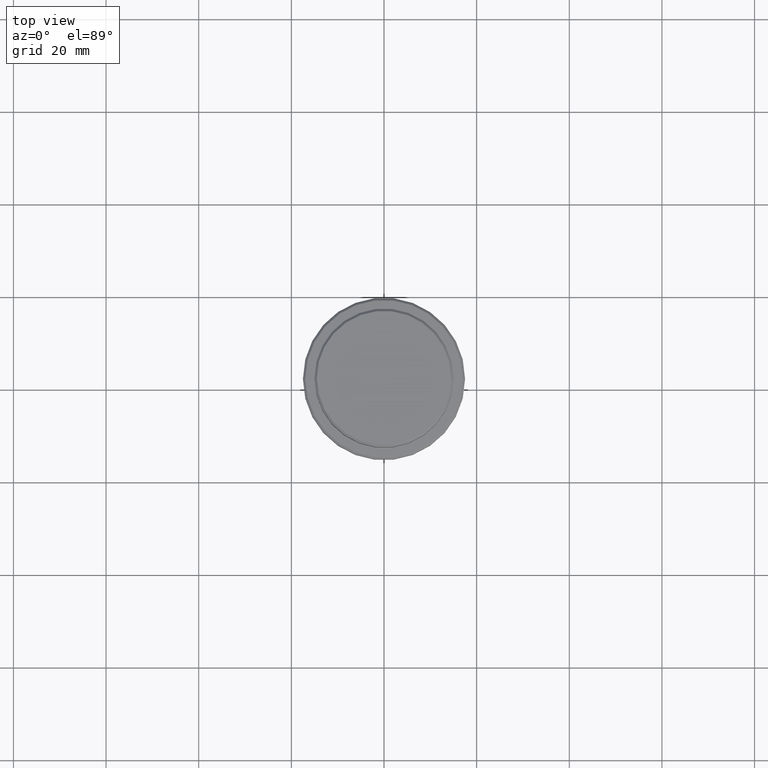
[diagram: clean part render]
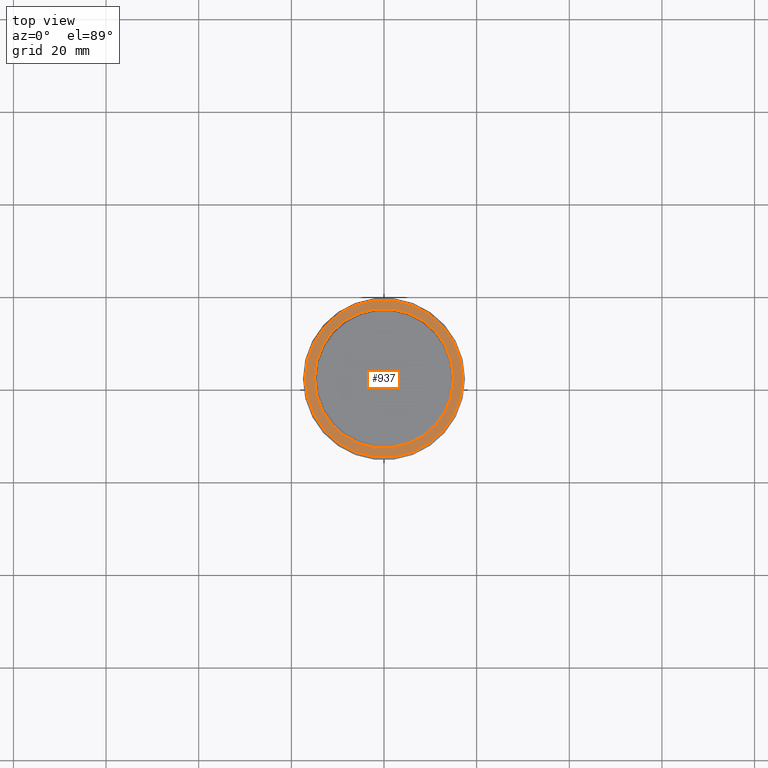
[diagram: same view with one face highlighted and labeled with its STEP entity id]
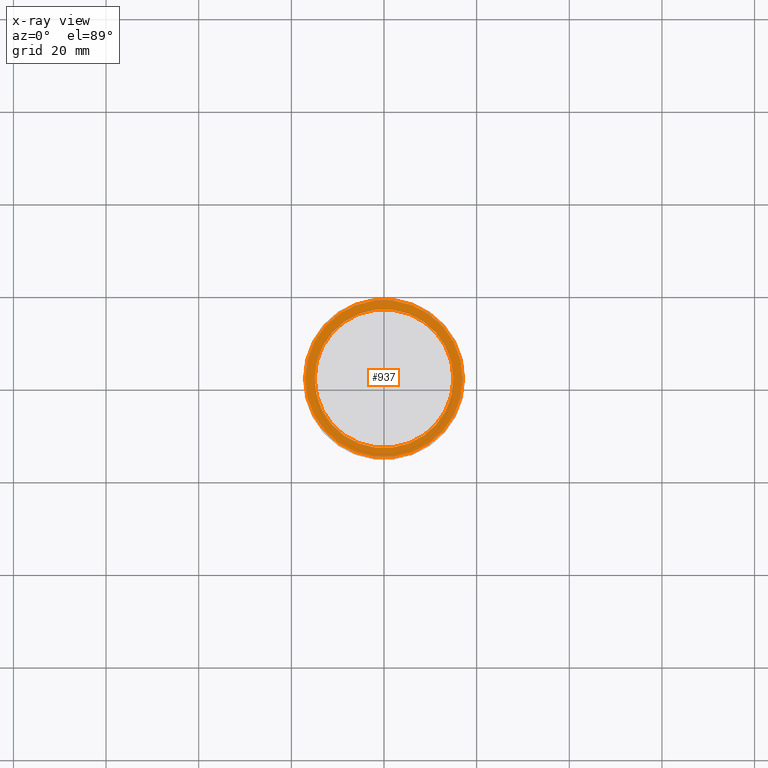
[diagram: x-ray of the same camera — body ghosted, the highlighted face saturated]
A machine part, top view. The second image highlights one B-rep face of the part: STEP entity #937.
The next image is the same camera in x-ray: the body ghosted, the highlighted face saturated — about 0% of this face is hidden behind the body in this view.
In plain terms, the highlighted planar face has unit normal (0, -0, 1).
Its self-contained STEP definition (entity closure, byte-faithful):
#7 = DIRECTION ( 'NONE',  ( 1.000000000000000000, 0.000000000000000000, 0.000000000000000000 ) ) ;
#25 = AXIS2_PLACEMENT_3D ( 'NONE', #659, #653, #7 ) ;
#187 = DIRECTION ( 'NONE',  ( 0.000000000000000000, 0.000000000000000000, -1.000000000000000000 ) ) ;
#280 = CARTESIAN_POINT ( 'NONE',  ( 14.99999999999999289, 0.000000000000000000, -9.000000000000000000 ) ) ;
#290 = CIRCLE ( 'NONE', #1247, 17.00000000000000000 ) ;
#328 = VERTEX_POINT ( 'NONE', #280 ) ;
#329 = FACE_OUTER_BOUND ( 'NONE', #1015, .T. ) ;
#340 = EDGE_CURVE ( 'NONE', #1210, #328, #520, .T. ) ;
#416 = AXIS2_PLACEMENT_3D ( 'NONE', #863, #1286, #943 ) ;
#431 = CARTESIAN_POINT ( 'NONE',  ( 0.000000000000000000, 0.000000000000000000, -9.000000000000000000 ) ) ;
#454 = EDGE_CURVE ( 'NONE', #328, #1210, #1253, .T. ) ;
#493 = CARTESIAN_POINT ( 'NONE',  ( -14.99999999999999289, 1.836970198721028800E-15, -9.000000000000000000 ) ) ;
#503 = DIRECTION ( 'NONE',  ( 1.000000000000000000, 0.000000000000000000, 0.000000000000000000 ) ) ;
#520 = CIRCLE ( 'NONE', #850, 14.99999999999999289 ) ;
#524 = DIRECTION ( 'NONE',  ( 1.000000000000000000, 0.000000000000000000, 0.000000000000000000 ) ) ;
#542 = PLANE ( 'NONE',  #25 ) ;
#568 = EDGE_LOOP ( 'NONE', ( #1033, #1271 ) ) ;
#595 = VERTEX_POINT ( 'NONE', #1156 ) ;
#597 = DIRECTION ( 'NONE',  ( 1.000000000000000000, 0.000000000000000000, 0.000000000000000000 ) ) ;
#629 = ORIENTED_EDGE ( 'NONE', *, *, #843, .T. ) ;
#630 = FACE_BOUND ( 'NONE', #568, .T. ) ;
#653 = DIRECTION ( 'NONE',  ( 0.000000000000000000, -0.000000000000000000, 1.000000000000000000 ) ) ;
#659 = CARTESIAN_POINT ( 'NONE',  ( 0.000000000000000000, 14.49999999999999467, -9.000000000000000000 ) ) ;
#682 = EDGE_CURVE ( 'NONE', #595, #1095, #290, .T. ) ;
#684 = DIRECTION ( 'NONE',  ( -0.000000000000000000, -0.000000000000000000, 1.000000000000000000 ) ) ;
#791 = CARTESIAN_POINT ( 'NONE',  ( 17.00000000000000000, 2.112515728529184067E-15, -9.000000000000000000 ) ) ;
#843 = EDGE_CURVE ( 'NONE', #1095, #595, #1101, .T. ) ;
#850 = AXIS2_PLACEMENT_3D ( 'NONE', #1235, #1025, #597 ) ;
#863 = CARTESIAN_POINT ( 'NONE',  ( 0.000000000000000000, 0.000000000000000000, -9.000000000000000000 ) ) ;
#937 = ADVANCED_FACE ( 'NONE', ( #329, #630 ), #542, .T. ) ;
#943 = DIRECTION ( 'NONE',  ( 1.000000000000000000, 0.000000000000000000, 0.000000000000000000 ) ) ;
#1007 = AXIS2_PLACEMENT_3D ( 'NONE', #431, #187, #524 ) ;
#1014 = ORIENTED_EDGE ( 'NONE', *, *, #682, .T. ) ;
#1015 = EDGE_LOOP ( 'NONE', ( #1014, #629 ) ) ;
#1025 = DIRECTION ( 'NONE',  ( 0.000000000000000000, 0.000000000000000000, -1.000000000000000000 ) ) ;
#1033 = ORIENTED_EDGE ( 'NONE', *, *, #454, .T. ) ;
#1095 = VERTEX_POINT ( 'NONE', #791 ) ;
#1101 = CIRCLE ( 'NONE', #416, 17.00000000000000000 ) ;
#1156 = CARTESIAN_POINT ( 'NONE',  ( -17.00000000000000000, 0.000000000000000000, -9.000000000000000000 ) ) ;
#1210 = VERTEX_POINT ( 'NONE', #493 ) ;
#1235 = CARTESIAN_POINT ( 'NONE',  ( 0.000000000000000000, 0.000000000000000000, -9.000000000000000000 ) ) ;
#1247 = AXIS2_PLACEMENT_3D ( 'NONE', #1355, #684, #503 ) ;
#1253 = CIRCLE ( 'NONE', #1007, 14.99999999999999289 ) ;
#1271 = ORIENTED_EDGE ( 'NONE', *, *, #340, .T. ) ;
#1286 = DIRECTION ( 'NONE',  ( -0.000000000000000000, -0.000000000000000000, 1.000000000000000000 ) ) ;
#1355 = CARTESIAN_POINT ( 'NONE',  ( 0.000000000000000000, 0.000000000000000000, -9.000000000000000000 ) ) ;